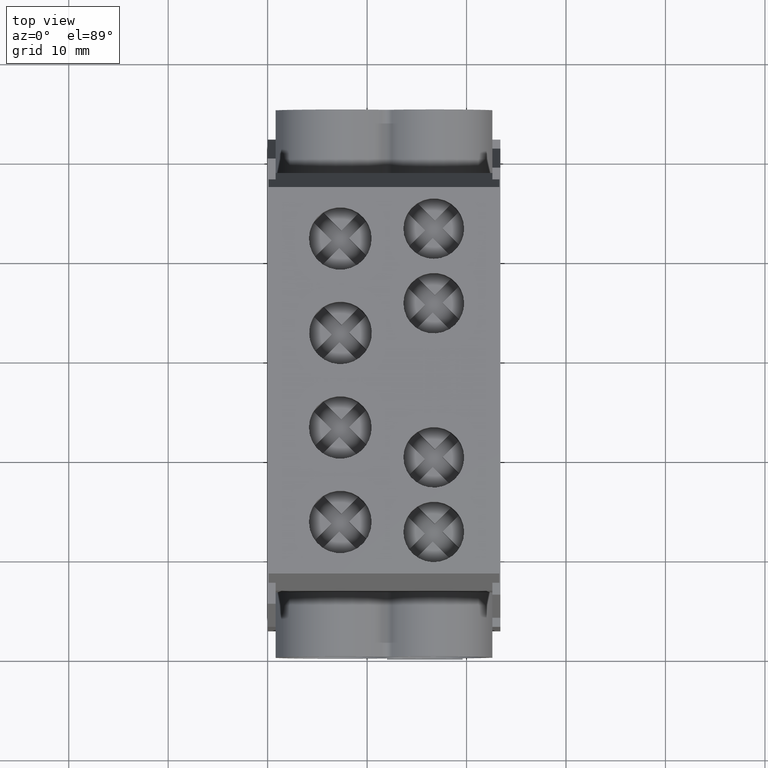
[diagram: clean part render]
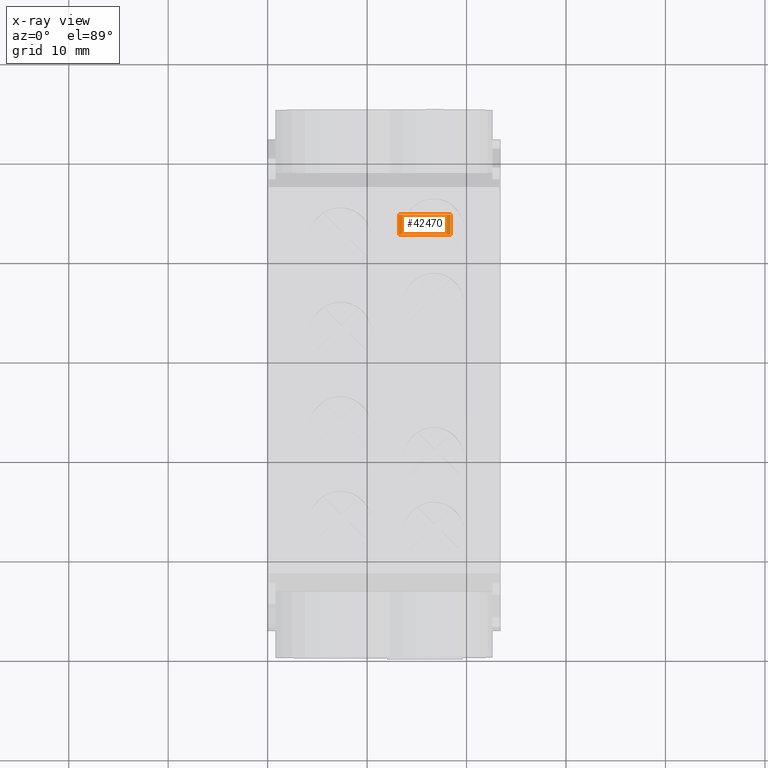
[diagram: x-ray — body ghosted, one internal face saturated and labeled with its STEP entity id]
A machine part, top view, then the same camera in x-ray: the body is ghosted and one INTERNAL B-rep face — a face not visible from any outside direction — is saturated and labeled: STEP entity #42470.
In plain terms, the highlighted planar face has unit normal (0, -0.1736, 0.9848).
Its self-contained STEP definition (entity closure, byte-faithful):
#7290=CARTESIAN_POINT('',(1.50000000000001,15.3,-9.35265396141692));
#7300=VERTEX_POINT('',#7290);
#7350=CARTESIAN_POINT('',(5.32907051820075E-15,15.3,-9.35265396141692));
#7360=DIRECTION('',(1.,-1.22108605138914E-16,5.55111512312578E-17));
#7370=VECTOR('',#7360,1.);
#7380=LINE('',#7350,#7370);
#7390=CARTESIAN_POINT('',(6.70000000000001,15.3,-9.35265396141692));
#7400=VERTEX_POINT('',#7390);
#7410=EDGE_CURVE('',#7300,#7400,#7380,.T.);
#24210=CARTESIAN_POINT('',(1.50000000000001,17.3,-8.99999999999999));
#24220=VERTEX_POINT('',#24210);
#24250=CARTESIAN_POINT('',(1.50000000000001,15.3,-9.35265396141692));
#24260=DIRECTION('',(1.10614090798808E-16,0.984807753012208,
0.173648177666929));
#24270=VECTOR('',#24260,1.);
#24280=LINE('',#24250,#24270);
#24290=EDGE_CURVE('',#7300,#24220,#24280,.T.);
#35510=CARTESIAN_POINT('',(6.70000000000001,7.105427357601E-15,
-12.0504567662564));
#35520=DIRECTION('',(0.,-0.984807753012208,-0.173648177666929));
#35530=VECTOR('',#35520,1.);
#35540=LINE('',#35510,#35530);
#35550=CARTESIAN_POINT('',(6.70000000000001,17.3,-9.));
#35560=VERTEX_POINT('',#35550);
#35570=EDGE_CURVE('',#35560,#7400,#35540,.T.);
#40700=CARTESIAN_POINT('',(5.32907051820075E-15,17.3,-8.99999999999999))
;
#40710=DIRECTION('',(1.,0.,7.70421928939245E-17));
#40720=VECTOR('',#40710,1.);
#40730=LINE('',#40700,#40720);
#40740=EDGE_CURVE('',#24220,#35560,#40730,.T.);
#42360=CARTESIAN_POINT('',(22.3863960220664,16.5,-9.14106158456677));
#42370=DIRECTION('',(0.,-0.173648177666928,0.984807753012209));
#42380=DIRECTION('',(0.,-0.984807753012209,-0.173648177666928));
#42390=AXIS2_PLACEMENT_3D('',#42360,#42370,#42380);
#42400=PLANE('',#42390);
#42410=ORIENTED_EDGE('',*,*,#7410,.T.);
#42420=ORIENTED_EDGE('',*,*,#24290,.F.);
#42430=ORIENTED_EDGE('',*,*,#40740,.F.);
#42440=ORIENTED_EDGE('',*,*,#35570,.F.);
#42450=EDGE_LOOP('',(#42440,#42430,#42420,#42410));
#42460=FACE_OUTER_BOUND('',#42450,.T.);
#42470=ADVANCED_FACE('',(#42460),#42400,.T.);